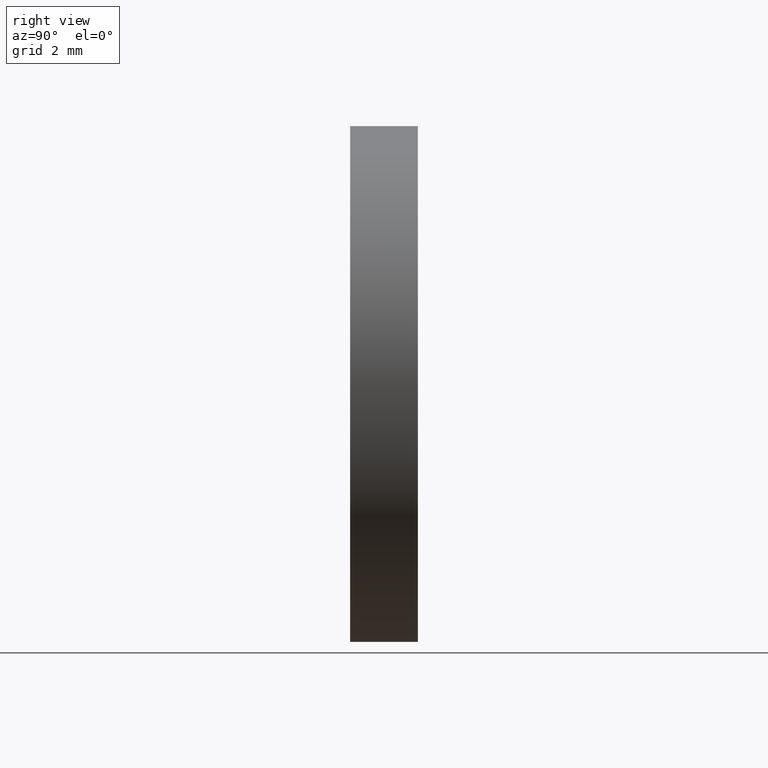
[diagram: clean part render]
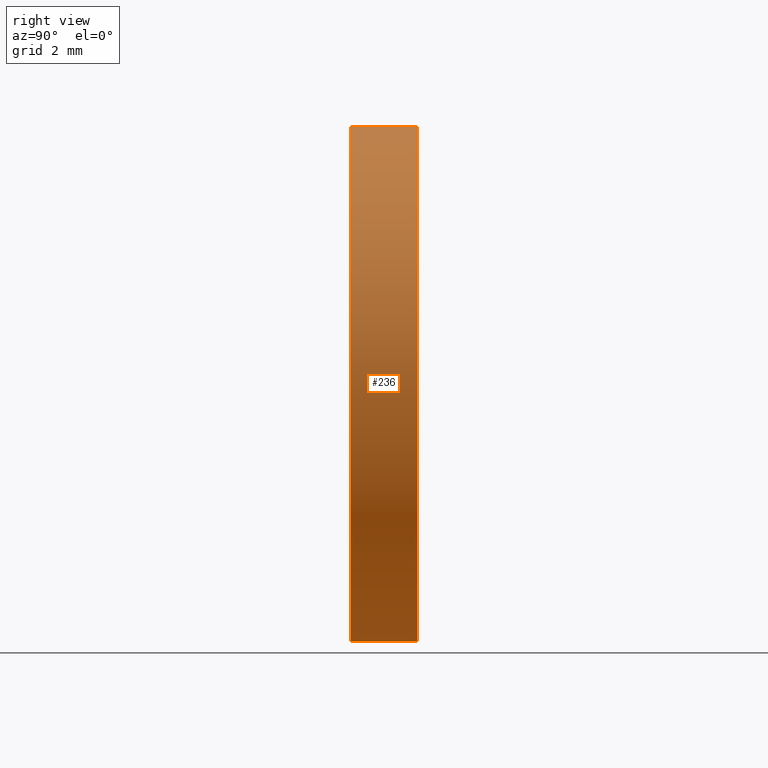
[diagram: same view with one face highlighted and labeled with its STEP entity id]
A machine part, right view. The second image highlights one B-rep face of the part: STEP entity #236.
In plain terms, the highlighted cylindrical surface (partial cylindrical patch) has radius 9.525 mm, axis along (-0, 1, -0).
Its self-contained STEP definition (entity closure, byte-faithful):
#6 = DIRECTION ( 'NONE',  ( -0.0000000000000000000, 1.000000000000000000, -0.0000000000000000000 ) ) ;
#7 = CARTESIAN_POINT ( 'NONE',  ( 1.166476076187855000E-015, 2.500000000000002200, -9.525000000000009200 ) ) ;
#9 = VERTEX_POINT ( 'NONE', #234 ) ;
#12 = VERTEX_POINT ( 'NONE', #137 ) ;
#16 = ORIENTED_EDGE ( 'NONE', *, *, #122, .F. ) ;
#18 = DIRECTION ( 'NONE',  ( -0.0000000000000000000, 1.000000000000000000, -0.0000000000000000000 ) ) ;
#25 = CARTESIAN_POINT ( 'NONE',  ( 0.0000000000000000000, 77.14414226561778800, 0.0000000000000000000 ) ) ;
#26 = FACE_OUTER_BOUND ( 'NONE', #127, .T. ) ;
#59 = DIRECTION ( 'NONE',  ( 0.0000000000000000000, 0.0000000000000000000, 1.000000000000000000 ) ) ;
#108 = DIRECTION ( 'NONE',  ( 0.0000000000000000000, 0.0000000000000000000, 1.000000000000000000 ) ) ;
#109 = ORIENTED_EDGE ( 'NONE', *, *, #149, .T. ) ;
#112 = ORIENTED_EDGE ( 'NONE', *, *, #192, .T. ) ;
#117 = LINE ( 'NONE', #185, #199 ) ;
#121 = DIRECTION ( 'NONE',  ( -0.0000000000000000000, 1.000000000000000000, -0.0000000000000000000 ) ) ;
#122 = EDGE_CURVE ( 'NONE', #183, #244, #238, .T. ) ;
#127 = EDGE_LOOP ( 'NONE', ( #109, #112, #16, #148 ) ) ;
#137 = CARTESIAN_POINT ( 'NONE',  ( 0.0000000000000000000, 0.0000000000000000000, 9.525000000000009200 ) ) ;
#143 = CIRCLE ( 'NONE', #205, 9.525000000000009200 ) ;
#146 = CARTESIAN_POINT ( 'NONE',  ( 0.0000000000000000000, 77.14414226561778800, 9.525000000000009200 ) ) ;
#147 = DIRECTION ( 'NONE',  ( -0.0000000000000000000, 1.000000000000000000, -0.0000000000000000000 ) ) ;
#148 = ORIENTED_EDGE ( 'NONE', *, *, #167, .F. ) ;
#149 = EDGE_CURVE ( 'NONE', #12, #9, #143, .T. ) ;
#164 = DIRECTION ( 'NONE',  ( -0.0000000000000000000, 1.000000000000000000, -0.0000000000000000000 ) ) ;
#166 = CARTESIAN_POINT ( 'NONE',  ( 0.0000000000000000000, 0.0000000000000000000, 0.0000000000000000000 ) ) ;
#167 = EDGE_CURVE ( 'NONE', #12, #183, #176, .T. ) ;
#168 = CARTESIAN_POINT ( 'NONE',  ( 0.0000000000000000000, 2.500000000000002200, 9.525000000000009200 ) ) ;
#173 = VECTOR ( 'NONE', #147, 1000.000000000000000 ) ;
#176 = LINE ( 'NONE', #146, #173 ) ;
#183 = VERTEX_POINT ( 'NONE', #168 ) ;
#184 = DIRECTION ( 'NONE',  ( 0.0000000000000000000, 0.0000000000000000000, 1.000000000000000000 ) ) ;
#185 = CARTESIAN_POINT ( 'NONE',  ( 1.166476076187855000E-015, 77.14414226561778800, -9.525000000000009200 ) ) ;
#186 = CYLINDRICAL_SURFACE ( 'NONE', #223, 9.525000000000009200 ) ;
#192 = EDGE_CURVE ( 'NONE', #9, #244, #117, .T. ) ;
#195 = AXIS2_PLACEMENT_3D ( 'NONE', #202, #164, #184 ) ;
#199 = VECTOR ( 'NONE', #18, 1000.000000000000000 ) ;
#202 = CARTESIAN_POINT ( 'NONE',  ( 0.0000000000000000000, 2.500000000000002200, 0.0000000000000000000 ) ) ;
#205 = AXIS2_PLACEMENT_3D ( 'NONE', #166, #121, #108 ) ;
#223 = AXIS2_PLACEMENT_3D ( 'NONE', #25, #6, #59 ) ;
#234 = CARTESIAN_POINT ( 'NONE',  ( 1.166476076187855000E-015, 0.0000000000000000000, -9.525000000000009200 ) ) ;
#236 = ADVANCED_FACE ( 'NONE', ( #26 ), #186, .T. ) ;
#238 = CIRCLE ( 'NONE', #195, 9.525000000000009200 ) ;
#244 = VERTEX_POINT ( 'NONE', #7 ) ;